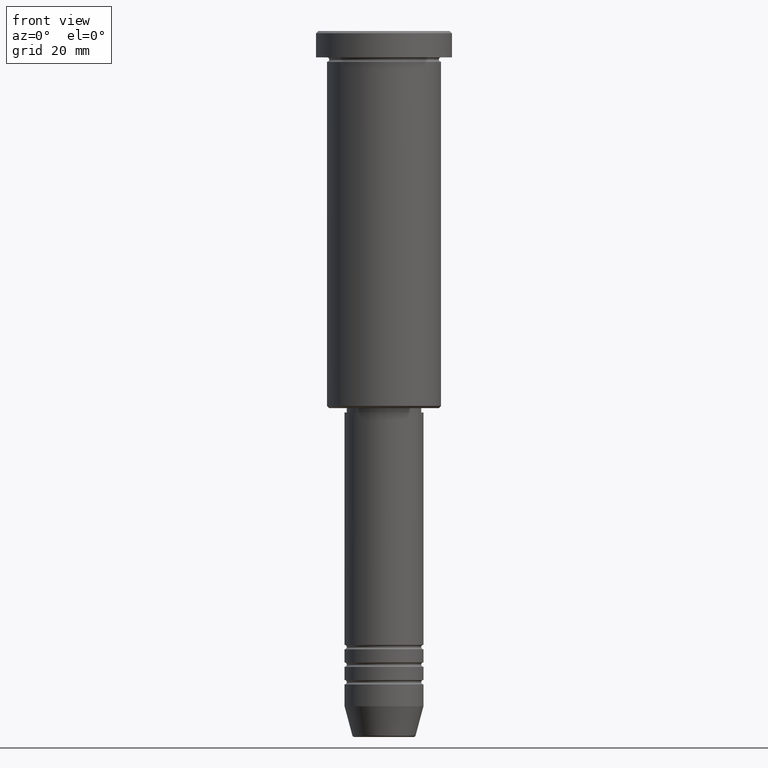
[diagram: clean part render]
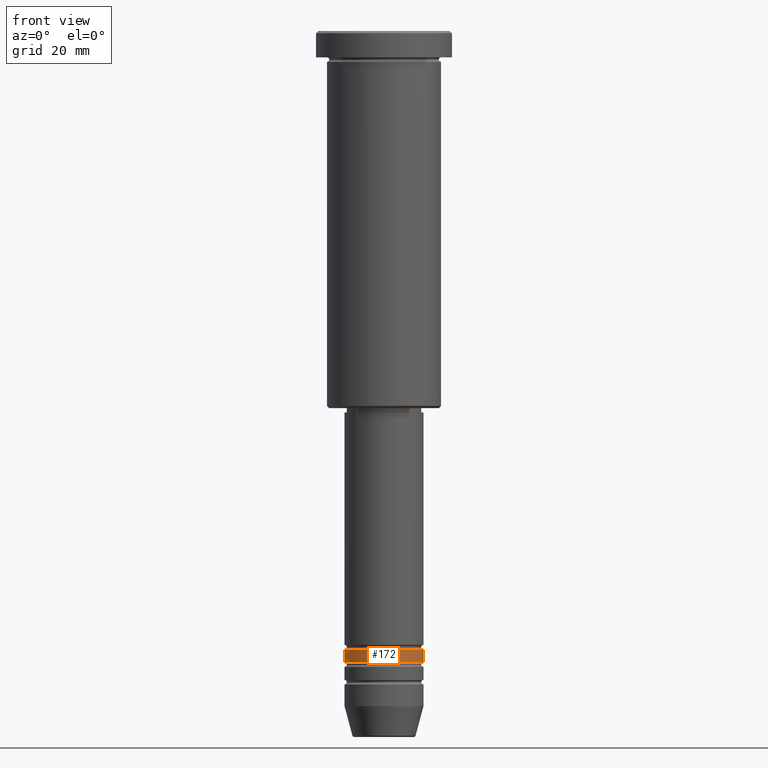
[diagram: same view with one face highlighted and labeled with its STEP entity id]
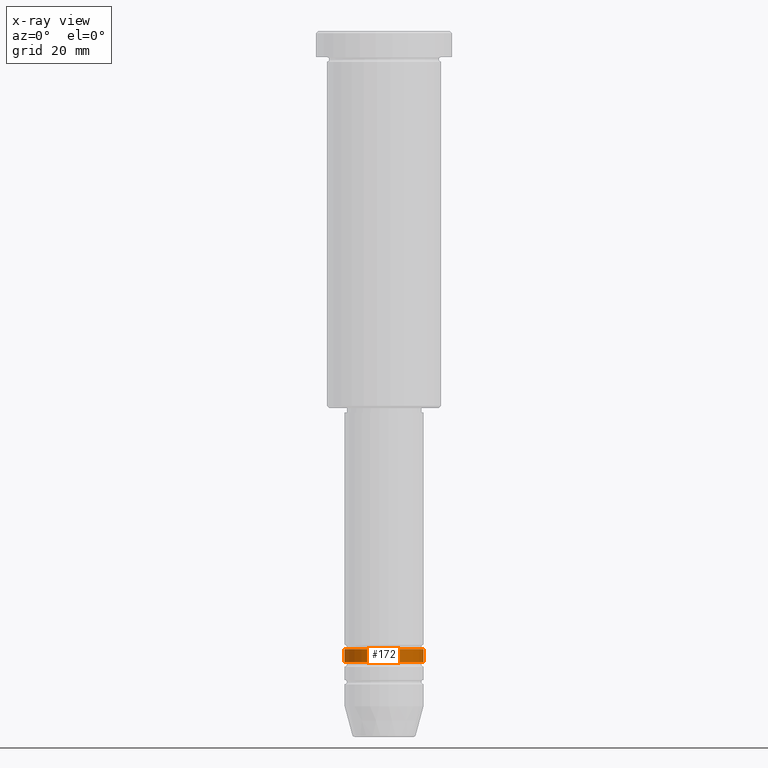
[diagram: x-ray of the same camera — body ghosted, the highlighted face saturated]
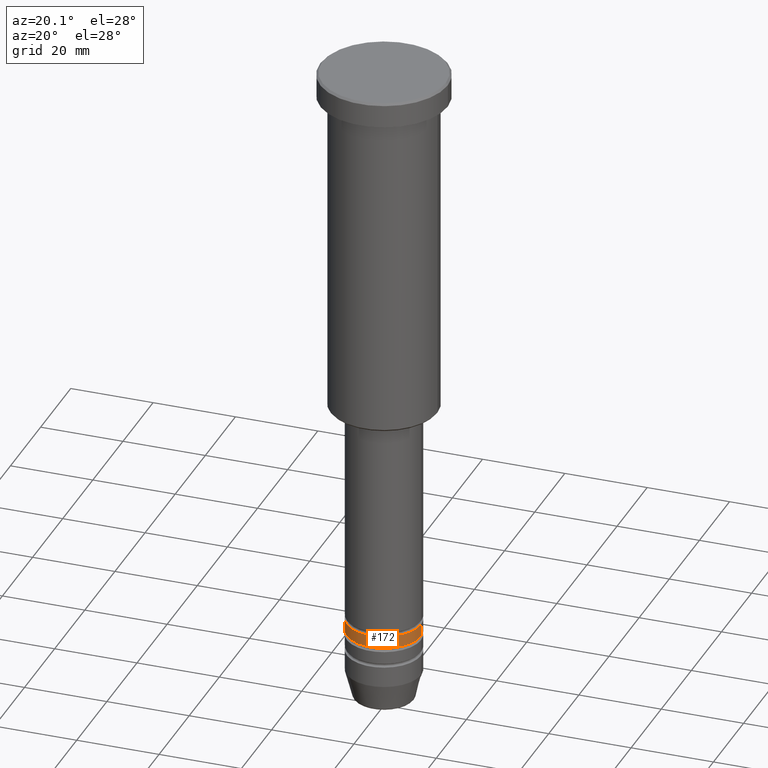
[diagram: same view with one face highlighted and labeled with its STEP entity id]
A machine part, front view. The second image highlights one B-rep face of the part: STEP entity #172.
The next image is the same camera in x-ray: the body ghosted, the highlighted face saturated — about 0% of this face is hidden behind the body in this view.
A second angle (auxiliary view) of the same face is appended — the face is thin or edge-on in the first view.
In plain terms, the highlighted cylindrical surface (partial cylindrical patch) has radius 9 mm, axis along (-0, -0, 1).
Its self-contained STEP definition (entity closure, byte-faithful):
#4 = CARTESIAN_POINT ( 'NONE',  ( 9.000000000000000000, 0.000000000000000000, -140.9999999999998579 ) ) ;
#77 = DIRECTION ( 'NONE',  ( 1.000000000000000000, 0.000000000000000000, 0.000000000000000000 ) ) ;
#87 = AXIS2_PLACEMENT_3D ( 'NONE', #178, #631, #542 ) ;
#109 = CARTESIAN_POINT ( 'NONE',  ( -9.000000000000001776, 1.102182119232617911E-15, 0.000000000000000000 ) ) ;
#142 = VECTOR ( 'NONE', #562, 1000.000000000000000 ) ;
#153 = ORIENTED_EDGE ( 'NONE', *, *, #564, .F. ) ;
#172 = ADVANCED_FACE ( 'NONE', ( #901 ), #1183, .T. ) ;
#178 = CARTESIAN_POINT ( 'NONE',  ( 0.000000000000000000, 0.000000000000000000, -143.9999999999998863 ) ) ;
#254 = DIRECTION ( 'NONE',  ( -0.000000000000000000, -0.000000000000000000, 1.000000000000000000 ) ) ;
#262 = ORIENTED_EDGE ( 'NONE', *, *, #543, .T. ) ;
#280 = VERTEX_POINT ( 'NONE', #4 ) ;
#284 = EDGE_CURVE ( 'NONE', #935, #983, #748, .T. ) ;
#297 = EDGE_LOOP ( 'NONE', ( #422, #262, #978, #153 ) ) ;
#300 = CARTESIAN_POINT ( 'NONE',  ( -9.000000000000001776, 1.102182119232617911E-15, -143.9999999999998863 ) ) ;
#311 = DIRECTION ( 'NONE',  ( -0.000000000000000000, -0.000000000000000000, 1.000000000000000000 ) ) ;
#332 = CIRCLE ( 'NONE', #87, 9.000000000000001776 ) ;
#363 = CARTESIAN_POINT ( 'NONE',  ( 0.000000000000000000, 0.000000000000000000, 0.000000000000000000 ) ) ;
#422 = ORIENTED_EDGE ( 'NONE', *, *, #284, .F. ) ;
#452 = AXIS2_PLACEMENT_3D ( 'NONE', #363, #254, #627 ) ;
#493 = VECTOR ( 'NONE', #311, 1000.000000000000000 ) ;
#540 = CARTESIAN_POINT ( 'NONE',  ( -9.000000000000000000, 1.102182119232617714E-15, -140.9999999999998579 ) ) ;
#542 = DIRECTION ( 'NONE',  ( 1.000000000000000000, 0.000000000000000000, 0.000000000000000000 ) ) ;
#543 = EDGE_CURVE ( 'NONE', #935, #824, #332, .T. ) ;
#562 = DIRECTION ( 'NONE',  ( -0.000000000000000000, -0.000000000000000000, 1.000000000000000000 ) ) ;
#564 = EDGE_CURVE ( 'NONE', #983, #280, #571, .T. ) ;
#571 = CIRCLE ( 'NONE', #1067, 9.000000000000000000 ) ;
#627 = DIRECTION ( 'NONE',  ( 1.000000000000000000, 0.000000000000000000, 0.000000000000000000 ) ) ;
#631 = DIRECTION ( 'NONE',  ( -0.000000000000000000, -0.000000000000000000, 1.000000000000000000 ) ) ;
#717 = DIRECTION ( 'NONE',  ( -0.000000000000000000, -0.000000000000000000, 1.000000000000000000 ) ) ;
#748 = LINE ( 'NONE', #109, #142 ) ;
#784 = CARTESIAN_POINT ( 'NONE',  ( 9.000000000000001776, 0.000000000000000000, -143.9999999999998863 ) ) ;
#824 = VERTEX_POINT ( 'NONE', #784 ) ;
#833 = EDGE_CURVE ( 'NONE', #824, #280, #946, .T. ) ;
#901 = FACE_OUTER_BOUND ( 'NONE', #297, .T. ) ;
#915 = CARTESIAN_POINT ( 'NONE',  ( 0.000000000000000000, 0.000000000000000000, -140.9999999999998579 ) ) ;
#935 = VERTEX_POINT ( 'NONE', #300 ) ;
#946 = LINE ( 'NONE', #1038, #493 ) ;
#978 = ORIENTED_EDGE ( 'NONE', *, *, #833, .T. ) ;
#983 = VERTEX_POINT ( 'NONE', #540 ) ;
#1038 = CARTESIAN_POINT ( 'NONE',  ( 9.000000000000001776, 0.000000000000000000, 0.000000000000000000 ) ) ;
#1067 = AXIS2_PLACEMENT_3D ( 'NONE', #915, #717, #77 ) ;
#1183 = CYLINDRICAL_SURFACE ( 'NONE', #452, 9.000000000000001776 ) ;